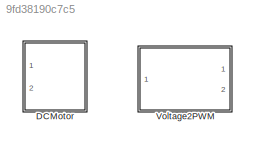
MODEL slx_9fd38190c7c5
KIND library
CONFIG AbsTol = auto
CONFIG EnableMultiTasking = on
CONFIG FixedStep = auto
CONFIG MaxStep = auto
CONFIG MinStep = auto
CONFIG RelTol = 1e-3
CONFIG SampleTimeConstraint = Unconstrained
CONFIG Solver = ode15s
CONFIG SolverName = ode15s
CONFIG StartTime = 0.0
CONFIG StopTime = 10.0
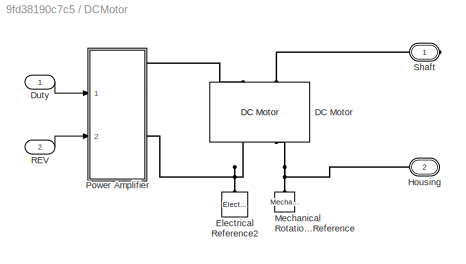
BLOCK [SubSystem]  DCMotor
  Ports = [2, 0, 0, 0, 0, 0, 2]
  RequestExecContextInheritance = off
BLOCK [Reference]  DCMotor/DC Motor  REF=ee_lib/Electromechanical/Brushed Motors/DC Motor
  Ports = [0, 0, 0, 0, 0, 2, 2]
  SourceBlock = ee_lib/Electromechanical/Brushed Motors/DC Motor
  SourceProductBaseCode = PS
  SourceProductName = Simscape Electrical
  SourceType = DC Motor
BLOCK [Inport]  DCMotor/Duty
  IconDisplay = Port number
BLOCK [Reference]  DCMotor/Electrical Reference2  REF=fl_lib/Electrical/Electrical Elements/Electrical Reference
  Ports = [0, 0, 0, 0, 0, 1]
  SourceBlock = fl_lib/Electrical/Electrical Elements/Electrical Reference
  SourceProductBaseCode = SS
  SourceProductName = Simscape
  SourceType = Electrical Reference
BLOCK [PMIOPort]  DCMotor/Housing
  Port = 2
  Side = Right
  Tag = PMCPort
BLOCK [Reference]  DCMotor/Mechanical Rotational Reference  REF=fl_lib/Mechanical/Rotational Elements/Mechanical
Rotational Reference
  Ports = [0, 0, 0, 0, 0, 1]
  SourceBlock = fl_lib/Mechanical/Rotational Elements/Mechanical\nRotational Reference
  SourceProductBaseCode = SS
  SourceProductName = Simscape
  SourceType = Mechanical\nRotational Reference
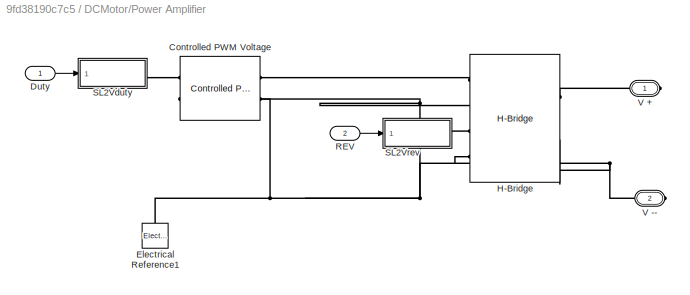
BLOCK [SubSystem]  DCMotor/Power Amplifier
  Ports = [2, 0, 0, 0, 0, 0, 2]
  RequestExecContextInheritance = off
BLOCK [Reference]  DCMotor/Power Amplifier/Controlled PWM Voltage  REF=ee_lib/Integrated Circuits/Controlled PWM
Voltage
  Ports = [0, 0, 0, 0, 0, 2, 2]
  SourceBlock = ee_lib/Integrated Circuits/Controlled PWM\nVoltage
  SourceProductBaseCode = PS
  SourceProductName = Simscape Electrical
  SourceType = Controlled PWM\nVoltage
BLOCK [Inport]  DCMotor/Power Amplifier/Duty
  IconDisplay = Port number
BLOCK [Reference]  DCMotor/Power Amplifier/Electrical Reference1  REF=fl_lib/Electrical/Electrical Elements/Electrical Reference
  Ports = [0, 0, 0, 0, 0, 1]
  SourceBlock = fl_lib/Electrical/Electrical Elements/Electrical Reference
  SourceProductBaseCode = SS
  SourceProductName = Simscape
  SourceType = Electrical Reference
BLOCK [Reference]  DCMotor/Power Amplifier/H-Bridge  REF=ee_lib/Semiconductors &
Converters/Converters/H-Bridge
  Ports = [0, 0, 0, 0, 0, 4, 2]
  SourceBlock = ee_lib/Semiconductors &\nConverters/Converters/H-Bridge
  SourceProductBaseCode = PS
  SourceProductName = Simscape Electrical
  SourceType = H-Bridge
BLOCK [Inport]  DCMotor/Power Amplifier/REV
  IconDisplay = Port number
  Port = 2
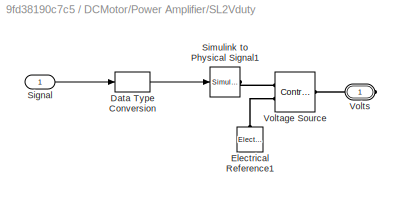
BLOCK [SubSystem]  DCMotor/Power Amplifier/SL2Vduty
  Ports = [1, 0, 0, 0, 0, 0, 1]
  RequestExecContextInheritance = off
BLOCK [DataTypeConversion]  DCMotor/Power Amplifier/SL2Vduty/Data Type Conversion
  OutDataTypeStr = double
  RndMeth = Floor
  SaturateOnIntegerOverflow = off
BLOCK [Reference]  DCMotor/Power Amplifier/SL2Vduty/Electrical Reference1  REF=fl_lib/Electrical/Electrical Elements/Electrical Reference
  Ports = [0, 0, 0, 0, 0, 1]
  SourceBlock = fl_lib/Electrical/Electrical Elements/Electrical Reference
  SourceProductBaseCode = SS
  SourceProductName = Simscape
  SourceType = Electrical Reference
BLOCK [Inport]  DCMotor/Power Amplifier/SL2Vduty/Signal
  IconDisplay = Port number
BLOCK [Reference]  DCMotor/Power Amplifier/SL2Vduty/Simulink to Physical Signal1  REF=nesl_utility/Simulink-PS
Converter
  Ports = [1, 0, 0, 0, 0, 0, 1]
  SourceBlock = nesl_utility/Simulink-PS\nConverter
  SourceProductBaseCode = SS
  SourceProductName = Simscape
  SourceType = Simulink-PS\nConverter
BLOCK [Reference]  DCMotor/Power Amplifier/SL2Vduty/Voltage Source  REF=fl_lib/Electrical/Electrical Sources/Controlled Voltage
Source
  Ports = [0, 0, 0, 0, 0, 1, 2]
  SourceBlock = fl_lib/Electrical/Electrical Sources/Controlled Voltage\nSource
  SourceProductBaseCode = SS
  SourceProductName = Simscape
  SourceType = Controlled Voltage\nSource
BLOCK [PMIOPort]  DCMotor/Power Amplifier/SL2Vduty/Volts
  Side = Right
  Tag = PMCPort
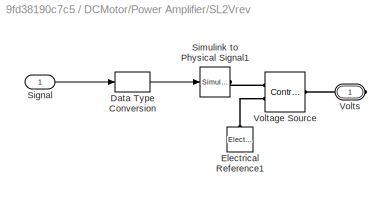
BLOCK [SubSystem]  DCMotor/Power Amplifier/SL2Vrev
  Ports = [1, 0, 0, 0, 0, 0, 1]
  RequestExecContextInheritance = off
BLOCK [DataTypeConversion]  DCMotor/Power Amplifier/SL2Vrev/Data Type Conversion
  OutDataTypeStr = double
  RndMeth = Floor
  SaturateOnIntegerOverflow = off
BLOCK [Reference]  DCMotor/Power Amplifier/SL2Vrev/Electrical Reference1  REF=fl_lib/Electrical/Electrical Elements/Electrical Reference
  Ports = [0, 0, 0, 0, 0, 1]
  SourceBlock = fl_lib/Electrical/Electrical Elements/Electrical Reference
  SourceProductBaseCode = SS
  SourceProductName = Simscape
  SourceType = Electrical Reference
BLOCK [Inport]  DCMotor/Power Amplifier/SL2Vrev/Signal
  IconDisplay = Port number
BLOCK [Reference]  DCMotor/Power Amplifier/SL2Vrev/Simulink to Physical Signal1  REF=nesl_utility/Simulink-PS
Converter
  Ports = [1, 0, 0, 0, 0, 0, 1]
  SourceBlock = nesl_utility/Simulink-PS\nConverter
  SourceProductBaseCode = SS
  SourceProductName = Simscape
  SourceType = Simulink-PS\nConverter
BLOCK [Reference]  DCMotor/Power Amplifier/SL2Vrev/Voltage Source  REF=fl_lib/Electrical/Electrical Sources/Controlled Voltage
Source
  Ports = [0, 0, 0, 0, 0, 1, 2]
  SourceBlock = fl_lib/Electrical/Electrical Sources/Controlled Voltage\nSource
  SourceProductBaseCode = SS
  SourceProductName = Simscape
  SourceType = Controlled Voltage\nSource
BLOCK [PMIOPort]  DCMotor/Power Amplifier/SL2Vrev/Volts
  Side = Right
  Tag = PMCPort
BLOCK [PMIOPort]  DCMotor/Power Amplifier/V +
  Side = Right
  Tag = PMCPort
BLOCK [PMIOPort]  DCMotor/Power Amplifier/V --
  Port = 2
  Side = Right
  Tag = PMCPort
BLOCK [Inport]  DCMotor/REV
  IconDisplay = Port number
  Port = 2
BLOCK [PMIOPort]  DCMotor/Shaft
  Side = Right
  Tag = PMCPort
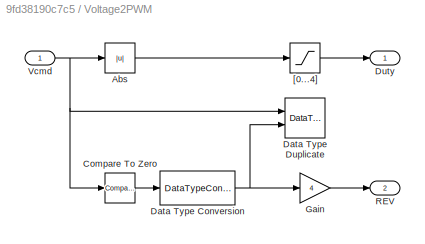
BLOCK [SubSystem] Voltage2PWM
  Ports = [1, 2]
  RequestExecContextInheritance = off
BLOCK [Abs] Voltage2PWM/Abs
  SaturateOnIntegerOverflow = off
BLOCK [Reference] Voltage2PWM/Compare To Zero  REF=simulink/Logic and Bit
Operations/Compare
To Zero
  Ports = [1, 1]
  SourceBlock = simulink/Logic and Bit\nOperations/Compare\nTo Zero
  SourceProductBaseCode = SL
  SourceProductName = Simulink
  SourceType = Compare To Zero
BLOCK [DataTypeConversion] Voltage2PWM/Data Type Conversion
  RndMeth = Floor
  SaturateOnIntegerOverflow = off
BLOCK [DataTypeDuplicate] Voltage2PWM/Data Type Duplicate
  Ports = [2]
BLOCK [Outport] Voltage2PWM/Duty
  IconDisplay = Port number
BLOCK [Gain] Voltage2PWM/Gain
  Gain = 4
  OutDataTypeStr = Inherit: Inherit via internal rule
  ParamDataTypeStr = Inherit: Inherit via internal rule
  SaturateOnIntegerOverflow = off
BLOCK [Outport] Voltage2PWM/REV
  IconDisplay = Port number
  Port = 2
BLOCK [Inport] Voltage2PWM/Vcmd
  IconDisplay = Port number
BLOCK [Saturate] Voltage2PWM/[0...4]
  InputPortMap = u0
  LowerLimit = 0
  Ports = [1, 1]
  UpperLimit = 4
LINE  DCMotor/Duty:1 ->  DCMotor/Power Amplifier:1
LINE  DCMotor/Power Amplifier/Duty:1 ->  DCMotor/Power Amplifier/SL2Vduty:1
LINE  DCMotor/Power Amplifier/REV:1 ->  DCMotor/Power Amplifier/SL2Vrev:1
LINE  DCMotor/Power Amplifier/SL2Vduty/Data Type Conversion:1 ->  DCMotor/Power Amplifier/SL2Vduty/Simulink to Physical Signal1:1
LINE  DCMotor/Power Amplifier/SL2Vduty/Signal:1 ->  DCMotor/Power Amplifier/SL2Vduty/Data Type Conversion:1
LINE  DCMotor/Power Amplifier/SL2Vrev/Data Type Conversion:1 ->  DCMotor/Power Amplifier/SL2Vrev/Simulink to Physical Signal1:1
LINE  DCMotor/Power Amplifier/SL2Vrev/Signal:1 ->  DCMotor/Power Amplifier/SL2Vrev/Data Type Conversion:1
LINE  DCMotor/REV:1 ->  DCMotor/Power Amplifier:2
LINE Voltage2PWM/Abs:1 -> Voltage2PWM/[0...4]:1
LINE Voltage2PWM/Compare To Zero:1 -> Voltage2PWM/Data Type Conversion:1
NET Voltage2PWM/Data Type Conversion:1 -> Voltage2PWM/Data Type Duplicate:2, Voltage2PWM/Gain:1
LINE Voltage2PWM/Gain:1 -> Voltage2PWM/REV:1
NET Voltage2PWM/Vcmd:1 -> Voltage2PWM/Abs:1, Voltage2PWM/Compare To Zero:1, Voltage2PWM/Data Type Duplicate:1
LINE Voltage2PWM/[0...4]:1 -> Voltage2PWM/Duty:1
PLINE  DCMotor/DC Motor:LConn1 --  DCMotor/Power Amplifier:RConn1
PLINE  DCMotor/DC Motor:LConn2 --  DCMotor/Shaft:RConn1
PNET net1:  DCMotor/DC Motor:RConn1 --  DCMotor/Electrical Reference2:LConn1 --  DCMotor/Power Amplifier:RConn2
PNET net2:  DCMotor/DC Motor:RConn2 --  DCMotor/Housing:RConn1 --  DCMotor/Mechanical Rotational Reference:LConn1
PLINE  DCMotor/Power Amplifier/Controlled PWM Voltage:LConn1 --  DCMotor/Power Amplifier/SL2Vduty:RConn1
PNET net3:  DCMotor/Power Amplifier/Controlled PWM Voltage:LConn2 --  DCMotor/Power Amplifier/Controlled PWM Voltage:RConn2 --  DCMotor/Power Amplifier/Electrical Reference1:LConn1 --  DCMotor/Power Amplifier/H-Bridge:LConn2 --  DCMotor/Power Amplifier/H-Bridge:LConn4 --  DCMotor/Power Amplifier/H-Bridge:RConn2 --  DCMotor/Power Amplifier/V --:RConn1
PLINE  DCMotor/Power Amplifier/Controlled PWM Voltage:RConn1 --  DCMotor/Power Amplifier/H-Bridge:LConn1
PLINE  DCMotor/Power Amplifier/H-Bridge:LConn3 --  DCMotor/Power Amplifier/SL2Vrev:RConn1
PLINE  DCMotor/Power Amplifier/H-Bridge:RConn1 --  DCMotor/Power Amplifier/V +:RConn1
PLINE  DCMotor/Power Amplifier/SL2Vduty/Electrical Reference1:LConn1 --  DCMotor/Power Amplifier/SL2Vduty/Voltage Source:RConn2
PLINE  DCMotor/Power Amplifier/SL2Vduty/Simulink to Physical Signal1:RConn1 --  DCMotor/Power Amplifier/SL2Vduty/Voltage Source:RConn1
PLINE  DCMotor/Power Amplifier/SL2Vduty/Voltage Source:LConn1 --  DCMotor/Power Amplifier/SL2Vduty/Volts:RConn1
PLINE  DCMotor/Power Amplifier/SL2Vrev/Electrical Reference1:LConn1 --  DCMotor/Power Amplifier/SL2Vrev/Voltage Source:RConn2
PLINE  DCMotor/Power Amplifier/SL2Vrev/Simulink to Physical Signal1:RConn1 --  DCMotor/Power Amplifier/SL2Vrev/Voltage Source:RConn1
PLINE  DCMotor/Power Amplifier/SL2Vrev/Voltage Source:LConn1 --  DCMotor/Power Amplifier/SL2Vrev/Volts:RConn1
note: NET lines group one-source signal fan-out (src -> all destinations, sorted); 1:1 wires keep LINE; PNET lines group multi-terminal physical nets as a canonical sorted terminal list (undirected conserving connections); 2-terminal nets keep the pairwise PLINE form
